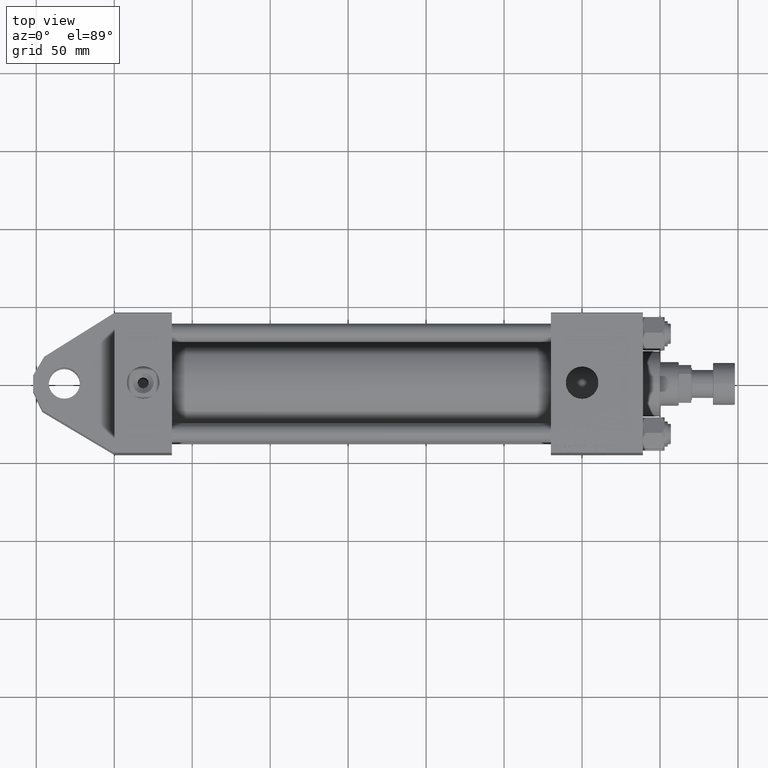
[diagram: clean part render]
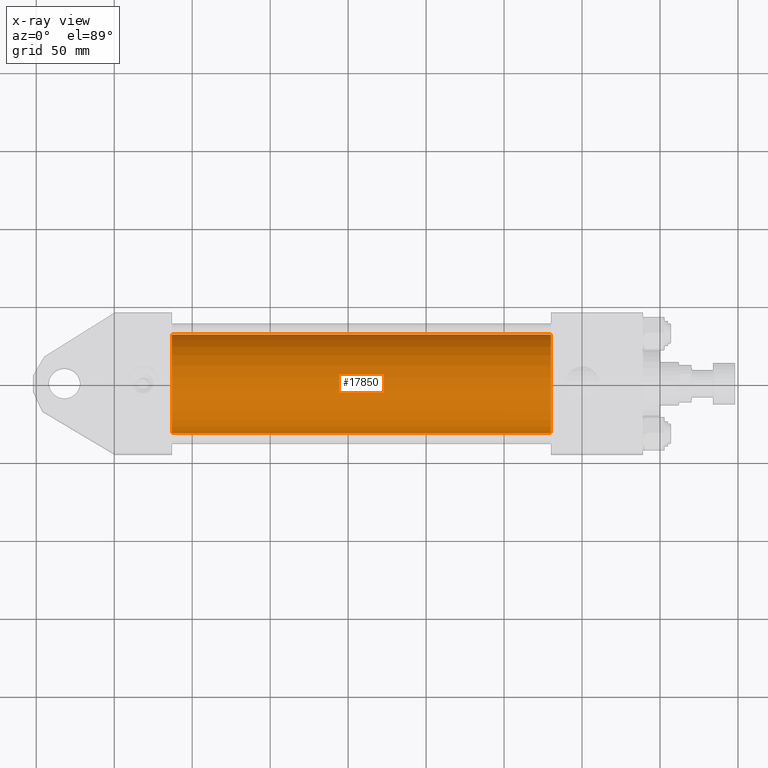
[diagram: x-ray — body ghosted, one internal face saturated and labeled with its STEP entity id]
A machine part, top view, then the same camera in x-ray: the body is ghosted and one INTERNAL B-rep face — a face not visible from any outside direction — is saturated and labeled: STEP entity #17850.
In plain terms, the highlighted cylindrical surface (partial cylindrical patch) has radius 31.5 mm, axis along (-1, -0, 0).
Its self-contained STEP definition (entity closure, byte-faithful):
#837 = ORIENTED_EDGE ( 'NONE', *, *, #10009, .F. ) ;
#892 = ORIENTED_EDGE ( 'NONE', *, *, #3864, .T. ) ;
#1572 = VECTOR ( 'NONE', #14469, 1000.000000000000000 ) ;
#3068 = CARTESIAN_POINT ( 'NONE',  ( 279.9999999999999432, 3.881904653605483521E-16, -31.50000000000000000 ) ) ;
#3198 = EDGE_CURVE ( 'NONE', #24506, #16689, #18688, .T. ) ;
#3864 = EDGE_CURVE ( 'NONE', #20739, #24506, #42945, .T. ) ;
#3872 = VECTOR ( 'NONE', #41556, 1000.000000000000000 ) ;
#8130 = CARTESIAN_POINT ( 'NONE',  ( 37.00000000000000000, -3.469446951953614189E-15, 0.000000000000000000 ) ) ;
#8506 = DIRECTION ( 'NONE',  ( 0.000000000000000000, 0.000000000000000000, 1.000000000000000000 ) ) ;
#9261 = DIRECTION ( 'NONE',  ( 0.000000000000000000, 0.000000000000000000, -1.000000000000000000 ) ) ;
#10009 = EDGE_CURVE ( 'NONE', #19476, #16689, #41501, .T. ) ;
#14469 = DIRECTION ( 'NONE',  ( -1.000000000000000000, -0.000000000000000000, -0.000000000000000000 ) ) ;
#14727 = CARTESIAN_POINT ( 'NONE',  ( 37.00000000000000000, -3.469446951953614189E-15, 31.50000000000000000 ) ) ;
#16689 = VERTEX_POINT ( 'NONE', #31560 ) ;
#17850 = ADVANCED_FACE ( 'NONE', ( #19616 ), #48662, .F. ) ;
#18688 = LINE ( 'NONE', #3068, #1572 ) ;
#19476 = VERTEX_POINT ( 'NONE', #14727 ) ;
#19616 = FACE_OUTER_BOUND ( 'NONE', #30265, .T. ) ;
#20739 = VERTEX_POINT ( 'NONE', #37378 ) ;
#21960 = ORIENTED_EDGE ( 'NONE', *, *, #3198, .T. ) ;
#23780 = AXIS2_PLACEMENT_3D ( 'NONE', #8130, #32686, #24509 ) ;
#24506 = VERTEX_POINT ( 'NONE', #49662 ) ;
#24509 = DIRECTION ( 'NONE',  ( 0.000000000000000000, 0.000000000000000000, -1.000000000000000000 ) ) ;
#28587 = CARTESIAN_POINT ( 'NONE',  ( 279.9999999999999432, -3.469446951953614189E-15, 0.000000000000000000 ) ) ;
#29416 = LINE ( 'NONE', #45527, #3872 ) ;
#29605 = DIRECTION ( 'NONE',  ( 1.000000000000000000, 0.000000000000000000, 0.000000000000000000 ) ) ;
#30265 = EDGE_LOOP ( 'NONE', ( #892, #21960, #837, #37734 ) ) ;
#31560 = CARTESIAN_POINT ( 'NONE',  ( 37.00000000000000000, 3.881904653605483521E-16, -31.50000000000000000 ) ) ;
#32686 = DIRECTION ( 'NONE',  ( 1.000000000000000000, 0.000000000000000000, 0.000000000000000000 ) ) ;
#35718 = DIRECTION ( 'NONE',  ( -1.000000000000000000, -0.000000000000000000, -0.000000000000000000 ) ) ;
#36725 = CARTESIAN_POINT ( 'NONE',  ( 279.9999999999999432, -3.469446951953614189E-15, 0.000000000000000000 ) ) ;
#37378 = CARTESIAN_POINT ( 'NONE',  ( 279.9999999999999432, -3.469446951953614189E-15, 31.50000000000000000 ) ) ;
#37734 = ORIENTED_EDGE ( 'NONE', *, *, #51517, .F. ) ;
#41501 = CIRCLE ( 'NONE', #23780, 31.50000000000000000 ) ;
#41556 = DIRECTION ( 'NONE',  ( -1.000000000000000000, -0.000000000000000000, -0.000000000000000000 ) ) ;
#42118 = AXIS2_PLACEMENT_3D ( 'NONE', #36725, #29605, #9261 ) ;
#42945 = CIRCLE ( 'NONE', #42118, 31.50000000000000000 ) ;
#45527 = CARTESIAN_POINT ( 'NONE',  ( 279.9999999999999432, -3.469446951953614189E-15, 31.50000000000000000 ) ) ;
#48402 = AXIS2_PLACEMENT_3D ( 'NONE', #28587, #35718, #8506 ) ;
#48662 = CYLINDRICAL_SURFACE ( 'NONE', #48402, 31.50000000000000000 ) ;
#49662 = CARTESIAN_POINT ( 'NONE',  ( 279.9999999999999432, 3.881904653605483521E-16, -31.50000000000000000 ) ) ;
#51517 = EDGE_CURVE ( 'NONE', #20739, #19476, #29416, .T. ) ;